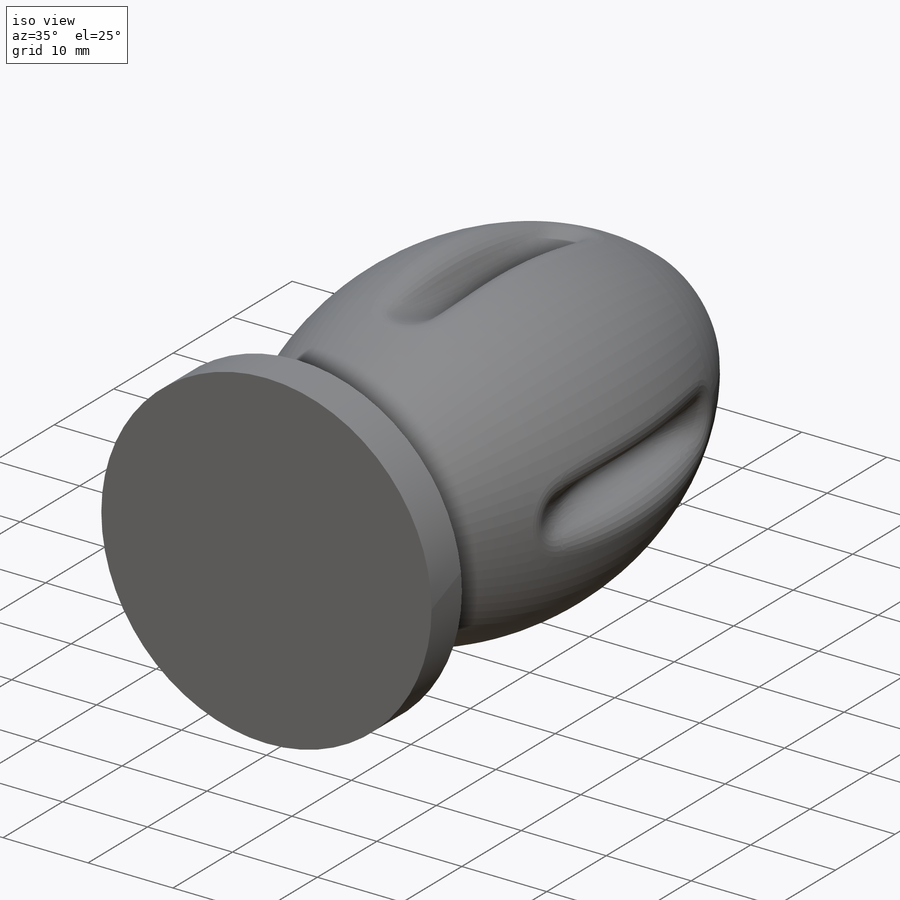
[diagram: iso view]
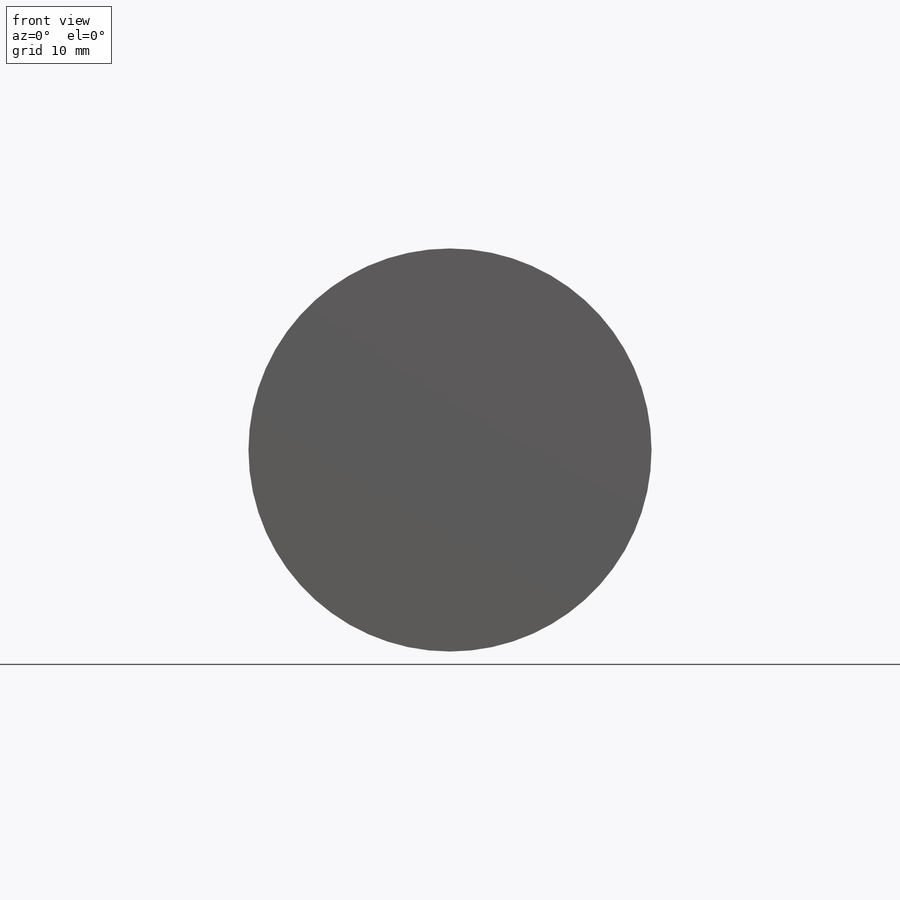
[diagram: front view]
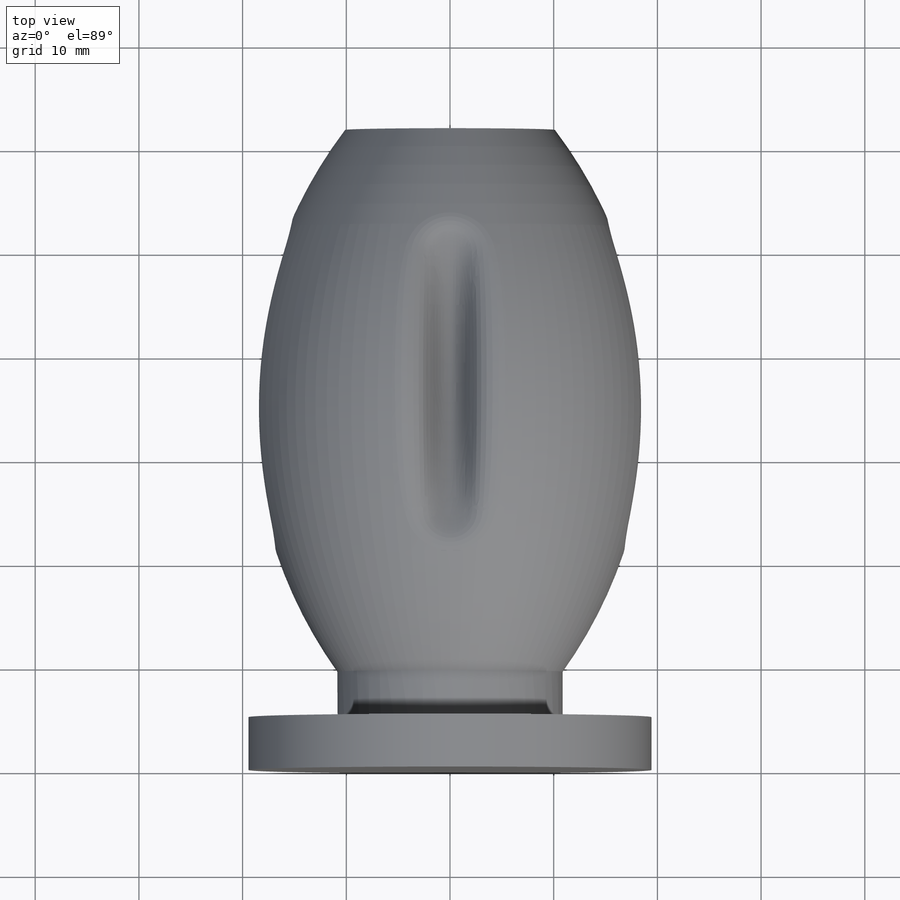
[diagram: top view]
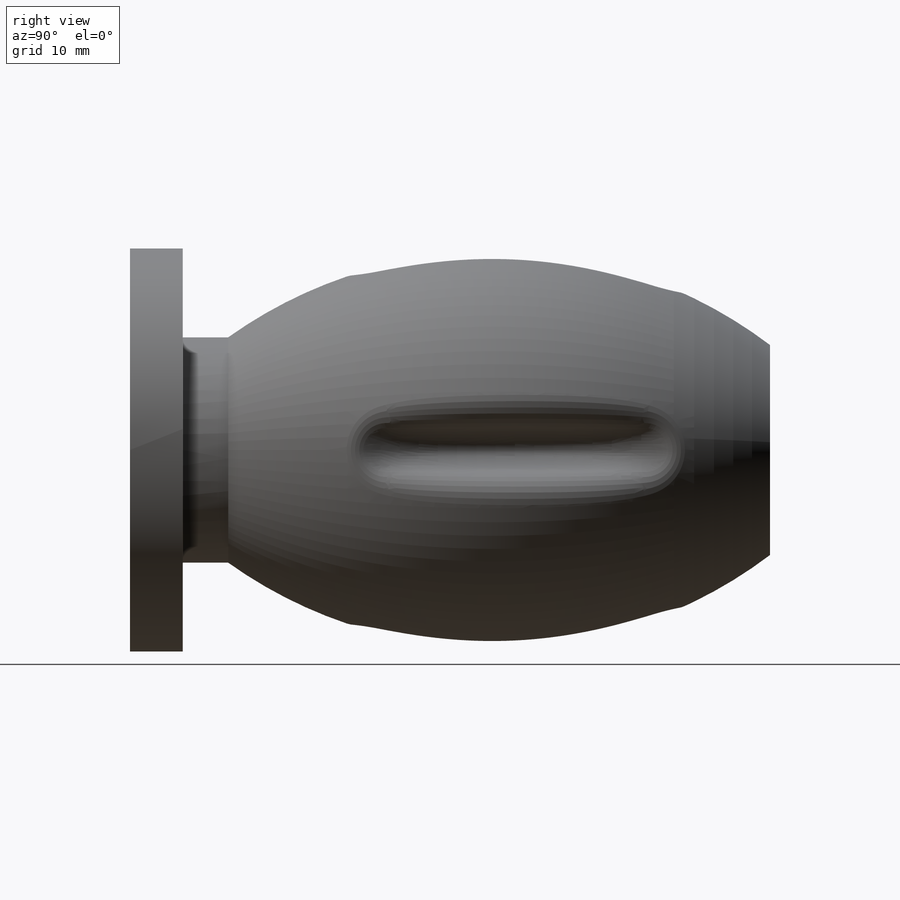
[diagram: right view]
SOLIDWORKS PART (.sldprt)
format: sldprt  version: not decoded by parser v0  size: 586,240 bytes
history: native  units: mm
features: plane x3, sketch x3, material x1, revolve x1, fillet x1, pattern_circular x1, boolean_combine x1 (+8 scaffold rows collapsed)
feature tree (19):
  scaffold x8  (default folders/planes/origin — collapsed)
  material  "Material <nicht festgelegt>"
  plane  "Vorderansicht"
  plane  "Draufsicht"
  plane  "Seitenansicht"
  sketch  "Skizze1"
  revolve  "Rotation1"  Angle=90deg
  sketch  "Skizze2"  dims[D1=6.0mm D2=25.0mm D3=12.0mm]
  sketch  "Skizze3"  dims[D1=9.0mm D2=31.0mm]
  fillet  "Verrundung1"  Radius=2.5mm
  pattern_circular  "Kreismuster2"  Count=4 Angle=360deg
  boolean_combine  "Kombinieren1"
decode coverage: 5 of 7 modeling features carry decoded parameters
note: suppression state not decoded; provenance and decode notes live in map.json
